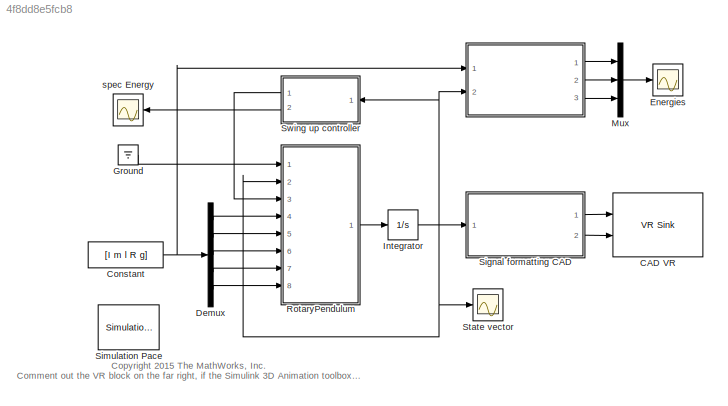
MODEL slx_4f8dd8e5fcb8
KIND model
CONFIG AbsTol = auto
CONFIG FixedStep = auto
CONFIG InitFcn = RotaryPendulum_PARAM;
CONFIG MaxStep = 1e-3
CONFIG MinStep = auto
CONFIG RelTol = auto
CONFIG SampleTimeConstraint = Unconstrained
CONFIG Solver = ode45
CONFIG SolverMode = Auto
CONFIG SolverName = ode45
CONFIG StartTime = 0.0
CONFIG StopTime = 30
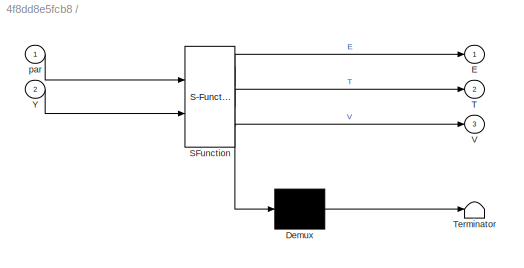
BLOCK [SubSystem]  
  ErrorFcn = Stateflow.Translate.translate
  PermitHierarchicalResolution = ExplicitOnly
  Ports = [2, 3]
  RequestExecContextInheritance = off
  SFBlockType = MATLAB Function
  TreatAsAtomicUnit = on
BLOCK [Demux]  / Demux 
  Outputs = 1
  Ports = [1, 1]
BLOCK [S-Function]  / SFunction 
  EnableBusSupport = on
  FunctionName = sf_sfun
  PortCounts = [2 4]
  Ports = [2, 4]
  Tag = Stateflow S-Function RotaryPendulum_SLdemo_SwingUp 1
BLOCK [Terminator]  / Terminator 
BLOCK [Outport]  /E
  IconDisplay = Port number
BLOCK [Outport]  /T
  IconDisplay = Port number
  Port = 2
BLOCK [Outport]  /V
  IconDisplay = Port number
  Port = 3
BLOCK [Inport]  /Y
  IconDisplay = Port number
  Port = 2
BLOCK [Inport]  /par
  IconDisplay = Port number
BLOCK [Reference] CAD VR  REF=vrlib/VR Sink
  AllowVariableSize = off
  AutoView = off
  FieldsWritten = BFrame.rotation.4.1.1.double#EFrame.rotation.4.1.1.double
  InstantiateOnLoad = on
  Ports = [2]
  RemoteChange = off
  RemoteView = off
  SampleTime = 0.1
  SourceBlock = vrlib/VR Sink
  SourceType = Virtual Reality Sink
  VideoDimensions = []
  ViewEnable = on
  WorldFileName = SolidWorksS3D.wrl
BLOCK [Constant] Constant
  Value = [I m l R g]
BLOCK [Demux] Demux
  DisplayOption = bar
  Outputs = 5
  Ports = [1, 5]
BLOCK [Scope] Energies
  Floating = off
  LimitDataPoints = off
  NumInputPorts = 1
  Ports = [1]
  SaveName = ScopeData1
  YMax = 0.006
  YMin = -0.003
BLOCK [Ground] Ground
BLOCK [Integrator] Integrator
  InitialCondition = [0 0 3.2 0.2]
  Ports = [1, 1]
BLOCK [Mux] Mux
  DisplayOption = bar
  Inputs = 3
  Ports = [3, 1]
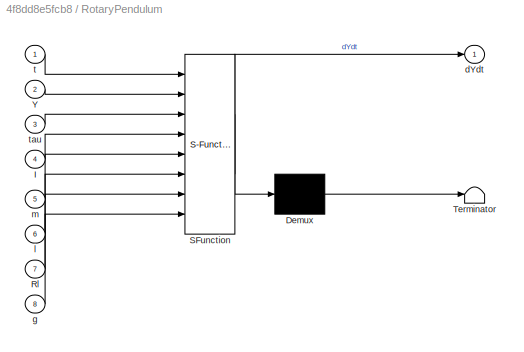
BLOCK [SubSystem] RotaryPendulum
  ErrorFcn = Stateflow.Translate.translate
  PermitHierarchicalResolution = ExplicitOnly
  Ports = [8, 1]
  RequestExecContextInheritance = off
  SFBlockType = MATLAB Function
  TreatAsAtomicUnit = on
BLOCK [Demux] RotaryPendulum/ Demux 
  Outputs = 1
  Ports = [1, 1]
BLOCK [S-Function] RotaryPendulum/ SFunction 
  FunctionName = sf_sfun
  PortCounts = [8 2]
  Ports = [8, 2]
  Tag = Stateflow S-Function RotaryPendulum_SLdemo_SwingUp 2
BLOCK [Terminator] RotaryPendulum/ Terminator 
BLOCK [Inport] RotaryPendulum/I
  IconDisplay = Port number
  Port = 4
BLOCK [Inport] RotaryPendulum/Rl
  IconDisplay = Port number
  Port = 7
BLOCK [Inport] RotaryPendulum/Y
  IconDisplay = Port number
  Port = 2
BLOCK [Outport] RotaryPendulum/dYdt
  IconDisplay = Port number
BLOCK [Inport] RotaryPendulum/g
  IconDisplay = Port number
  Port = 8
BLOCK [Inport] RotaryPendulum/l
  IconDisplay = Port number
  Port = 6
BLOCK [Inport] RotaryPendulum/m
  IconDisplay = Port number
  Port = 5
BLOCK [Inport] RotaryPendulum/t
  IconDisplay = Port number
BLOCK [Inport] RotaryPendulum/tau
  IconDisplay = Port number
  Port = 3
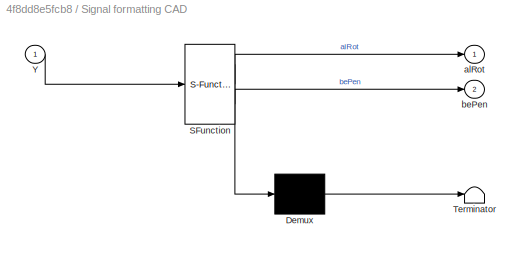
BLOCK [SubSystem] Signal formatting CAD
  ErrorFcn = Stateflow.Translate.translate
  PermitHierarchicalResolution = ExplicitOnly
  Ports = [1, 2]
  RequestExecContextInheritance = off
  SFBlockType = MATLAB Function
  TreatAsAtomicUnit = on
BLOCK [Demux] Signal formatting CAD/ Demux 
  Outputs = 1
  Ports = [1, 1]
BLOCK [S-Function] Signal formatting CAD/ SFunction 
  EnableBusSupport = on
  FunctionName = sf_sfun
  PortCounts = [1 3]
  Ports = [1, 3]
  Tag = Stateflow S-Function RotaryPendulum_SLdemo_SwingUp 5
BLOCK [Terminator] Signal formatting CAD/ Terminator 
BLOCK [Inport] Signal formatting CAD/Y
  IconDisplay = Port number
BLOCK [Outport] Signal formatting CAD/alRot
  IconDisplay = Port number
BLOCK [Outport] Signal formatting CAD/bePen
  IconDisplay = Port number
  Port = 2
BLOCK [Reference] Simulation Pace  REF=aerolibanimutils/Simulation Pace
  AttributesFormatString = %<SimulationPace> sec/sec
  OutputPaceError = off
  Ports = []
  SampleTime = 1/20
  SimulationPace = 0.75
  SleepMode = MATLAB Thread
  SourceBlock = aerolibanimutils/Simulation Pace
  SourceType = Simulation Pace
BLOCK [Scope] State vector
  Floating = off
  LimitDataPoints = off
  NumInputPorts = 1
  Ports = [1]
  YMax = 12.5
  YMin = -12.5
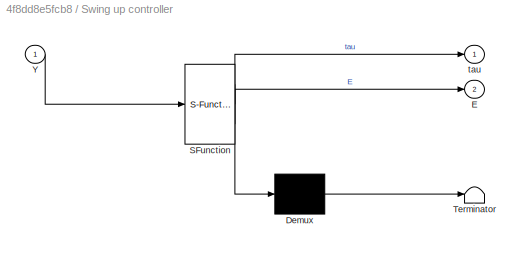
BLOCK [SubSystem] Swing up controller
  ErrorFcn = Stateflow.Translate.translate
  PermitHierarchicalResolution = ExplicitOnly
  Ports = [1, 2]
  RequestExecContextInheritance = off
  SFBlockType = MATLAB Function
  TreatAsAtomicUnit = on
BLOCK [Demux] Swing up controller/ Demux 
  Outputs = 1
  Ports = [1, 1]
BLOCK [S-Function] Swing up controller/ SFunction 
  EnableBusSupport = on
  FunctionName = sf_sfun
  PortCounts = [1 3]
  Ports = [1, 3]
  Tag = Stateflow S-Function RotaryPendulum_SLdemo_SwingUp 3
BLOCK [Terminator] Swing up controller/ Terminator 
BLOCK [Outport] Swing up controller/E
  IconDisplay = Port number
  Port = 2
BLOCK [Inport] Swing up controller/Y
  IconDisplay = Port number
BLOCK [Outport] Swing up controller/tau
  IconDisplay = Port number
BLOCK [Scope] spec Energy
  Floating = off
  NumInputPorts = 1
  Ports = [1]
  SaveName = ScopeData3
  YMax = -1.9
  YMin = -2.1
ANNOTATION (root): <copyright redacted>
ANNOTATION (root): Comment out the VR block on the far right, if the Simulink 3D Animation toolbox is not available on your system.
LINE  :1 -> Mux:1
LINE  :2 -> Mux:2
LINE  :3 -> Mux:3
NET Constant:1 ->  :1, Demux:1
LINE Demux:1 -> RotaryPendulum:4
LINE Demux:2 -> RotaryPendulum:5
LINE Demux:3 -> RotaryPendulum:6
LINE Demux:4 -> RotaryPendulum:7
LINE Demux:5 -> RotaryPendulum:8
LINE Ground:1 -> RotaryPendulum:1
NET Integrator:1 ->  :2, RotaryPendulum:2, Signal formatting CAD:1, State vector:1, Swing up controller:1
LINE Mux:1 -> Energies:1
LINE RotaryPendulum:1 -> Integrator:1
LINE Signal formatting CAD:1 -> CAD VR:1
LINE Signal formatting CAD:2 -> CAD VR:2
LINE Swing up controller:1 -> RotaryPendulum:3
LINE Swing up controller:2 -> spec Energy:1
note: NET lines group one-source signal fan-out (src -> all destinations, sorted); 1:1 wires keep LINE
CHART  
 states=1 transitions=1
  STATE_LABEL 'eML_blk_kernel()'
  STATE_LABEL 'SCRIPT:\nfunction [E,T,V] = ComputeEnergies(par,Y)\n%#codegen\nal  = Y(1);\ndal = Y(2);\nbe  = Y(3);\ndbe = Y(4);\n\nI   = par(1);\nm   = par(2);\nl   = par(3);\nR   = par(4);\ng   = par(5);\n\nT   = I*dal.^2/2 + m/2*(R^2*dal.^2 + l^2*dal.^2.*sin(be).^2/3 + ...\n        l^2*dbe.^2/4 - R*l*dal.*dbe.*cos(be)) + m*l^2*dbe.^2/24;\nV   = m*g*l/2*cos(be);\nE   = T + V;\nend'
CHART RotaryPendulum states=1 transitions=1
  STATE_LABEL 'eML_blk_kernel()'
  STATE_LABEL 'SCRIPT:\nfunction dYdt = RotaryPendulum_ODE(t,Y,tau,I,m,l,Rl,g)\n%#codegen\n\n%    This function was generated by the Symbolic Math Toolbox version 6.2.\n%    10-Jun-2015 13:24:25\n\nt4 = Y(3);\nt2 = sin(t4);\nt3 = Rl.^2;\nt5 = cos(t4);\nt6 = Y(4);\nt7 = t5.^2;\nt8 = Y(2);\nt9 = l.^2;\nt10 = I.*1.2e1;\nt11 = m.*t3.*1.2e1;\nt12 = t2.^2;\nt13 = m.*t9.*t12.*4.0;\nt14 = t10+t11+t13-m.*t3.*t7.*9.0;\nt15 = 1.0./t14;\nt16 = ...<+424ch>'
CHART Swing up controller states=1 transitions=1
  STATE_LABEL 'eML_blk_kernel()'
  STATE_LABEL 'SCRIPT:\nfunction [tau,E] = Controller(Y)\n\nbe  = Y(3);\ndbe = Y(4);\n\nm = 3.3e-3;\nl = 183.2e-3;\nM = 20.3e-3;\nR = 109e-3;\ng = 9.81;\n\nme    = 0.012;\nre    = 0.02;\nma    = M - me;\nIno_e = ma*R^2/3;        % corrected I without encoder\nItot  = Ino_e + me*re^2; % corrected I with encoder\nI     = Itot;\n\nT   = m*l^2*dbe.^2/6;\nV   = m*g*l/2*(cos(be) - 1);\nk   = 2e-4;\nE   = -V/(m*g*l/2);\nKM  = -[-0.6546041454...<+185ch>'
CHART Signal formatting CAD states=1 transitions=1
  STATE_LABEL 'eML_blk_kernel()'
  STATE_LABEL 'SCRIPT:\nfunction [alRot, bePen] = FormatOUT(Y)\nal    = Y(1);\ndal   = Y(2);\nbe    = Y(3);\ndbe   = Y(4);\n\n\nalRot = [0; 0; 1; al];\nbePen = [1; 0; 0; be];\nend'
